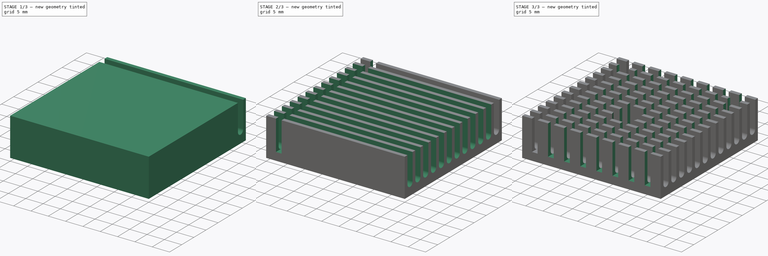
[diagram: build sequence overview — one tinted view per stage of 3, left to right]
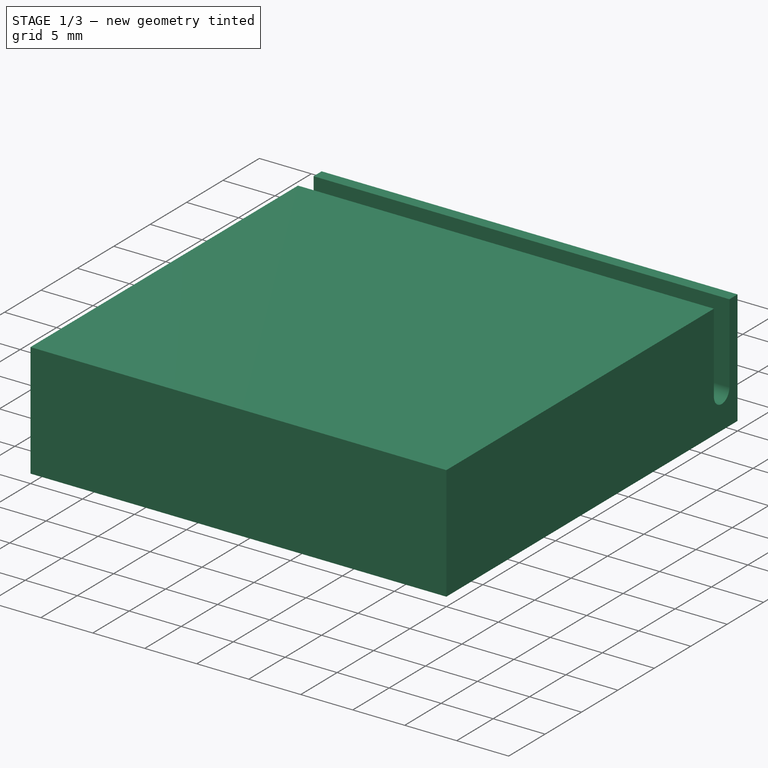
[diagram: stage 1 of 3 — iso view after this stage's code; geometry added in this stage tinted green]
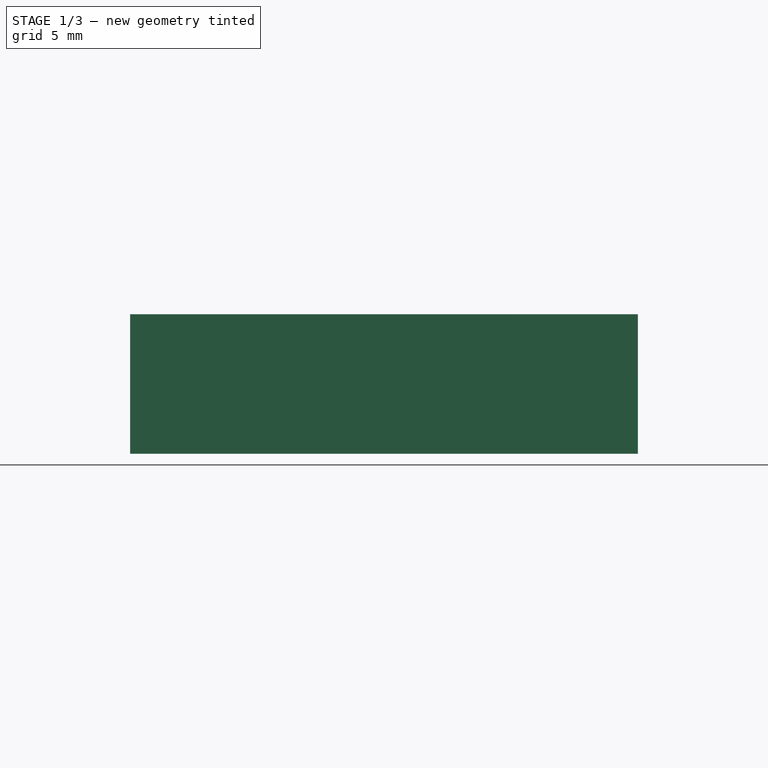
[diagram: stage 1 of 3 — front view after this stage's code; geometry added in this stage tinted green]
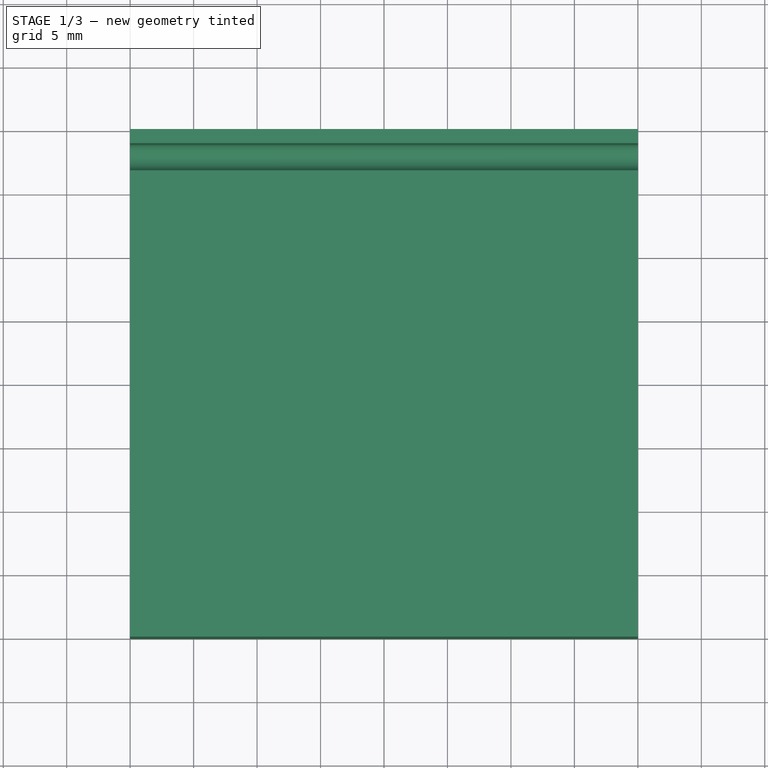
[diagram: stage 1 of 3 — top view after this stage's code; geometry added in this stage tinted green]
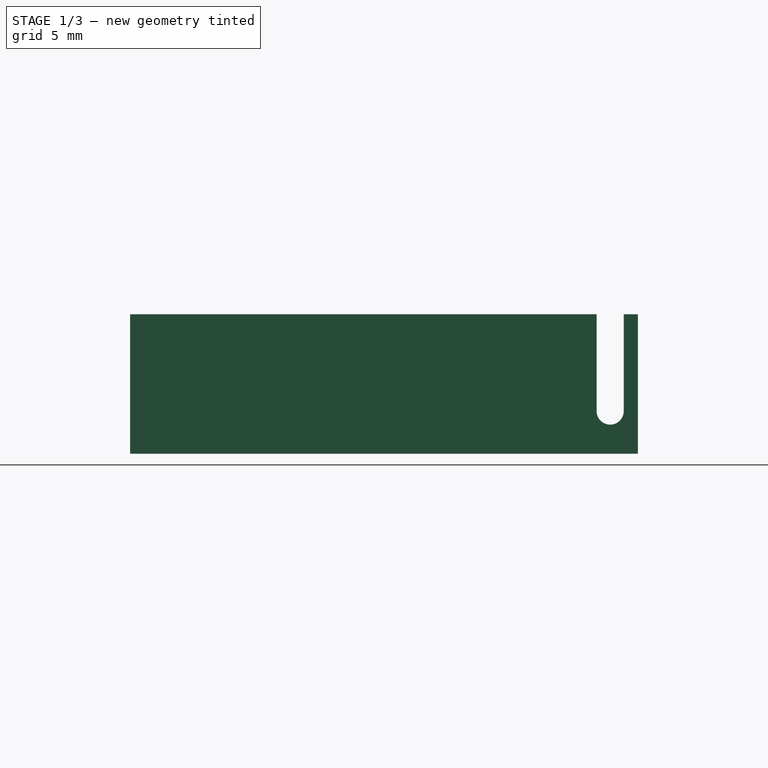
[diagram: stage 1 of 3 — right view after this stage's code; geometry added in this stage tinted green]
FCSTD DOCUMENT  (FreeCAD 0.14R3702 (Git))
Label: extruder-heat-sink
License: CC-BY 3.0
LicenseURL: http://creativecommons.org/licenses/by/3.0/
objects: Part::Part2DObjectPython×6, Sketcher::SketchObject×4, PartDesign::Pocket×3, PartDesign::LinearPattern×2, PartDesign::Pad×1, App::DocumentObjectGroup×1, Part::Feature×1
note: 21 computed .brp shape members not serialized (recipe doc carries the construction recipe); baked Part::Feature solids carry a one-line shape summary decoded from their .brp

FEATURE [Sketcher::SketchObject] Sketch  label="main-body-sketch"
  sketch-geometry (4):
    g0: LineSegment StartX=-20 StartY=20 StartZ=0 EndX=20 EndY=20 EndZ=0
    g1: LineSegment StartX=20 StartY=20 StartZ=0 EndX=20 EndY=-20 EndZ=0
    g2: LineSegment StartX=20 StartY=-20 StartZ=0 EndX=-20 EndY=-20 EndZ=0
    g3: LineSegment StartX=-20 StartY=-20 StartZ=0 EndX=-20 EndY=20 EndZ=0
  constraints (11):
    c: Coincident(g0,g1)
    c: Coincident(g1,g2)
    c: Coincident(g2,g3)
    c: Coincident(g3,g0)
    c: Horizontal(g0)
    c: Horizontal(g2)
    c: Vertical(g1)
    c: Vertical(g3)
    c: Symmetric(g0,g1,g-1)
    c: Equal(g0,g3)
    c: DistanceX(g0) = 40
FEATURE [PartDesign::Pad] Pad  label="main-body"
  Length = 11
  Length2 = 100
  Sketch = -> Sketch
  Type = 0
FEATURE [Sketcher::SketchObject] Sketch001  label="slot-x-master-sketch"
  ExternalGeometry = -> [Pad]
  Placement = pos=(-20,0,0) rot=(0.57735,-0.57735,-0.57735;2.0944rad)
  Support = -> Pad [Face4]
  sketch-geometry (7):
    g0: LineSegment StartX=-18.89 StartY=11 StartZ=0 EndX=-18.89 EndY=3.37 EndZ=0
    g1: LineSegment StartX=-16.75 StartY=11 StartZ=0 EndX=-16.75 EndY=3.37 EndZ=0
    g2: LineSegment [constr] StartX=-18.89 StartY=3.37 StartZ=0 EndX=-16.75 EndY=3.37 EndZ=0
    g3: ArcOfCircle CenterX=-17.82 CenterY=3.37 CenterZ=0 NormalX=0 NormalY=0 NormalZ=1 Radius=1.07 StartAngle=3.14159 EndAngle=6.28319
    g4: LineSegment StartX=-18.89 StartY=11 StartZ=0 EndX=-18.89 EndY=11.5 EndZ=0
    g5: LineSegment StartX=-18.89 StartY=11.5 StartZ=0 EndX=-16.75 EndY=11.5 EndZ=0
    g6: LineSegment StartX=-16.75 StartY=11.5 StartZ=0 EndX=-16.75 EndY=11 EndZ=0
  constraints (21):
    c: Vertical(g0)
    c: Vertical(g1)
    c: PointOnObject(g1,g-4)
    c: Equal(g0,g1)
    c: DistanceY(g0) = -7.63
    c: DistanceX(g0,g1) = 2.14
    c: DistanceX(g-4,g0) = 1.11
    c: Horizontal(g2)
    c: Coincident(g2,g0)
    c: Coincident(g2,g1)
    c: Coincident(g3,g1)
    c: Coincident(g3,g0)
    c: PointOnObject(g3,g2)
    c: Coincident(g4,g5)
    c: Coincident(g5,g6)
    c: Vertical(g4)
    c: Vertical(g6)
    c: Coincident(g4,g0)
    c: Coincident(g6,g1)
    c: Horizontal(g5)
    c: DistanceY(g1,g5) = 0.5
FEATURE [PartDesign::Pocket] Pocket  label="slot-x-master"
  Length = 5
  Sketch = -> Sketch001
  Type = 1
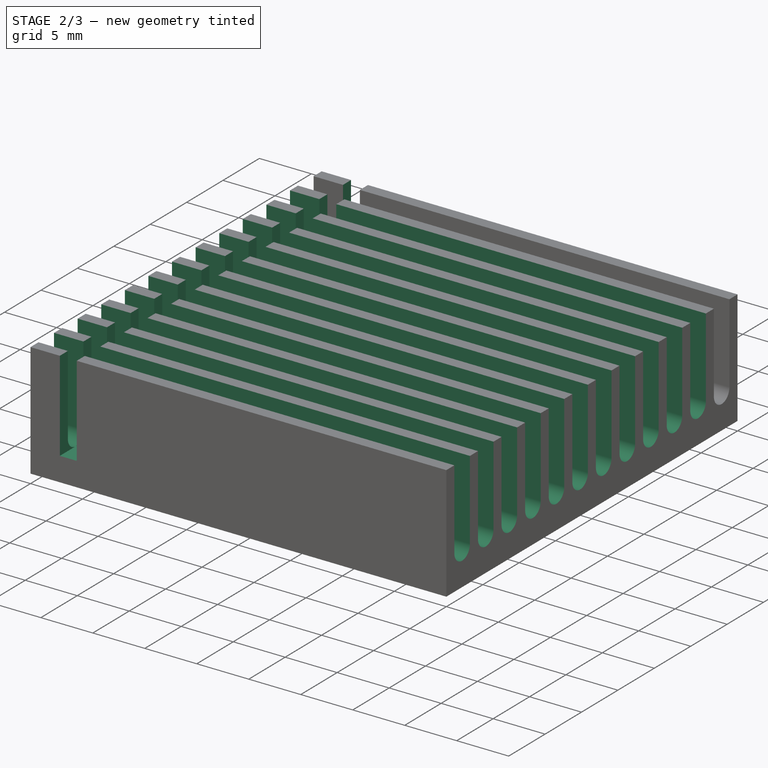
[diagram: stage 2 of 3 — iso view after this stage's code; geometry added in this stage tinted green]
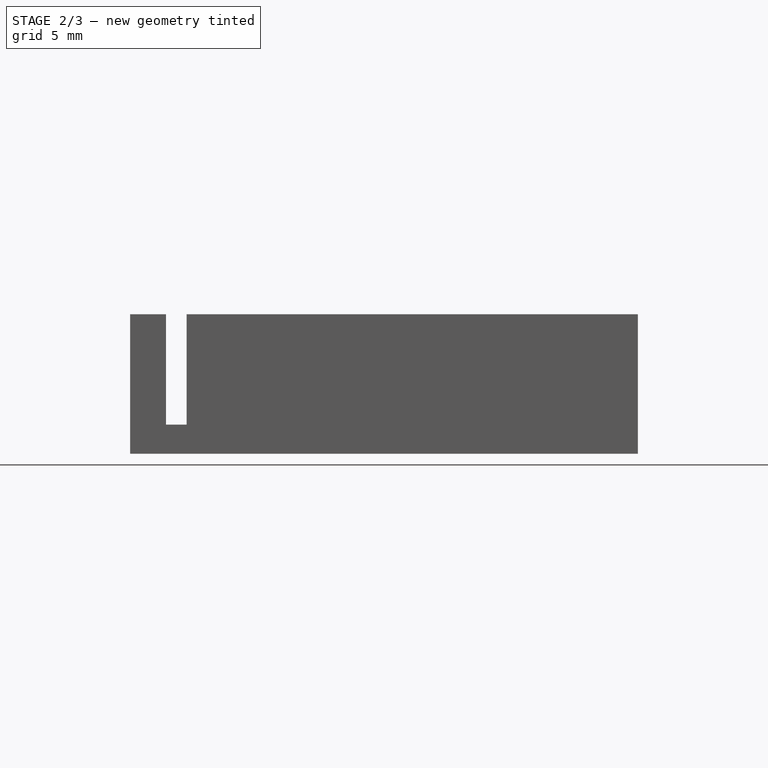
[diagram: stage 2 of 3 — front view after this stage's code; geometry added in this stage tinted green]
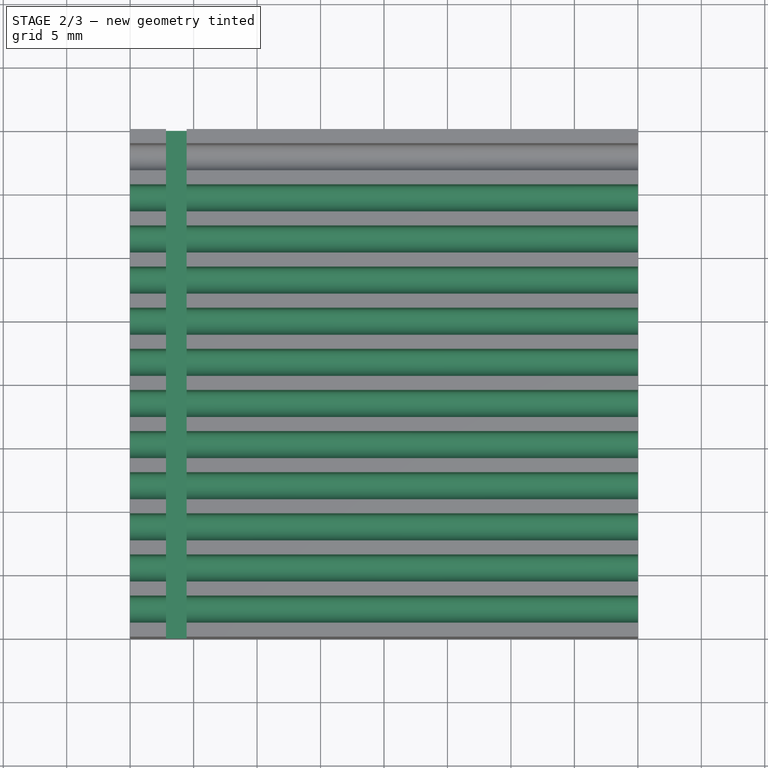
[diagram: stage 2 of 3 — top view after this stage's code; geometry added in this stage tinted green]
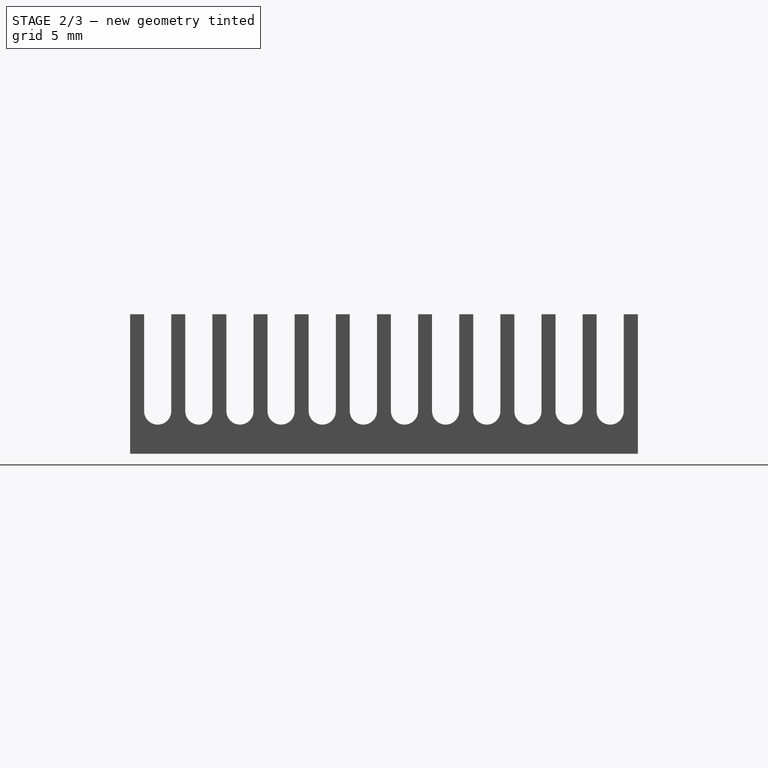
[diagram: stage 2 of 3 — right view after this stage's code; geometry added in this stage tinted green]
FEATURE [PartDesign::LinearPattern] LinearPattern  label="Slots-x"
  Direction = -> Sketch001 [H_Axis]
  Length = 35.65
  Occurrences = 12
  Originals = -> [Pocket]
FEATURE [Sketcher::SketchObject] Sketch002  label="slot-y-master-sketch"
  ExternalGeometry = -> [LinearPattern]
  Placement = pos=(0,-20,0) rot=(1,0,0;1.5708rad)
  Support = -> LinearPattern [Face54]
  sketch-geometry (6):
    g0: LineSegment StartX=-15.55 StartY=11 StartZ=0 EndX=-15.55 EndY=2.3 EndZ=0
    g1: LineSegment StartX=-15.55 StartY=2.3 StartZ=0 EndX=-17.175 EndY=2.3 EndZ=0
    g2: LineSegment StartX=-17.175 StartY=2.3 StartZ=0 EndX=-17.175 EndY=11 EndZ=0
    g3: LineSegment StartX=-17.175 StartY=11 StartZ=0 EndX=-17.175 EndY=11.5 EndZ=0
    g4: LineSegment StartX=-17.175 StartY=11.5 StartZ=0 EndX=-15.55 EndY=11.5 EndZ=0
    g5: LineSegment StartX=-15.55 StartY=11.5 StartZ=0 EndX=-15.55 EndY=11 EndZ=0
  constraints (18):
    c: Coincident(g0,g1)
    c: Coincident(g1,g2)
    c: Horizontal(g1)
    c: Vertical(g0)
    c: Vertical(g2)
    c: PointOnObject(g2,g-3)
    c: PointOnObject(g0,g-3)
    c: DistanceY(g2) = 8.7
    c: DistanceX(g1) = -1.625
    c: DistanceX(g-3,g2) = 2.825
    c: Coincident(g3,g4)
    c: Coincident(g4,g5)
    c: Vertical(g3)
    c: Vertical(g5)
    c: Horizontal(g4)
    c: Coincident(g3,g2)
    c: Coincident(g5,g0)
    c: DistanceY(g5) = -0.5
FEATURE [PartDesign::Pocket] Pocket001  label="slot-y-master"
  Length = 5
  Sketch = -> Sketch002
  Type = 1
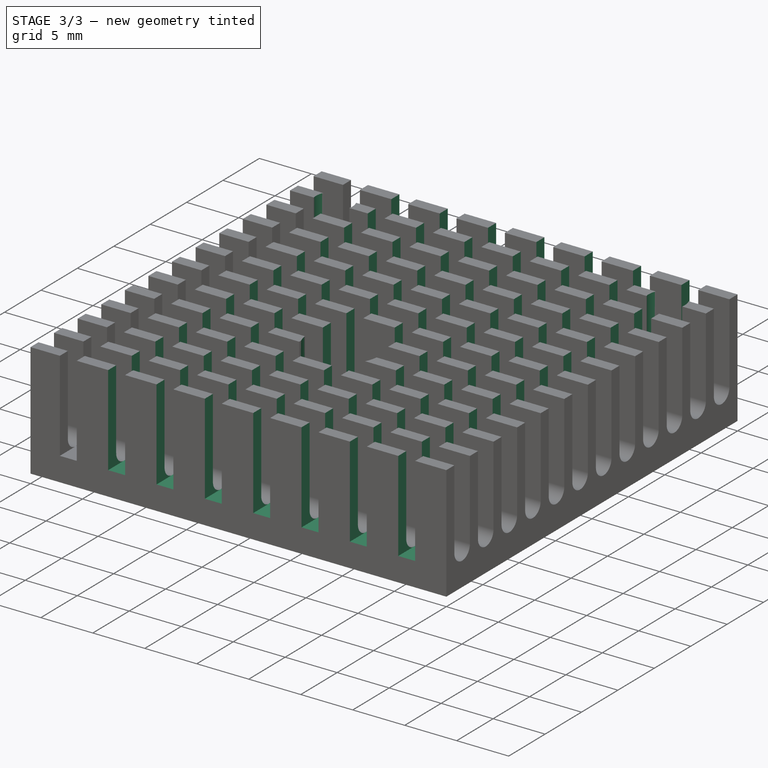
[diagram: stage 3 of 3 — iso view after this stage's code; geometry added in this stage tinted green]
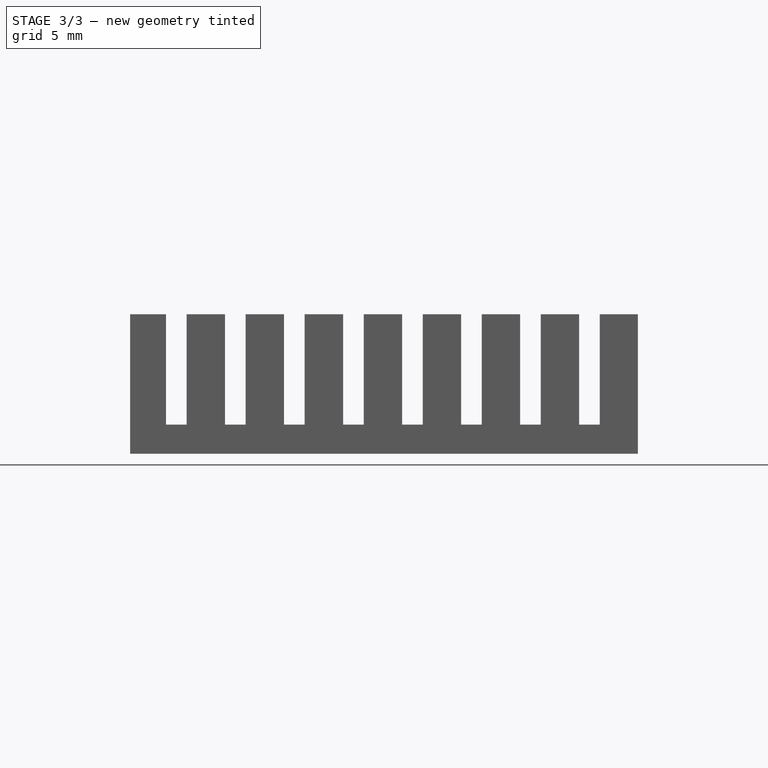
[diagram: stage 3 of 3 — front view after this stage's code; geometry added in this stage tinted green]
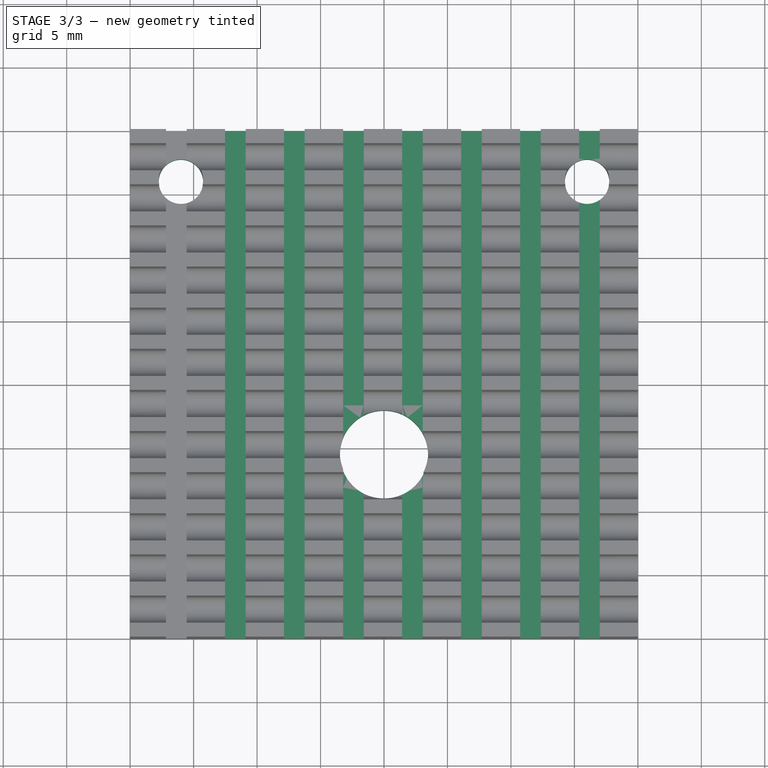
[diagram: stage 3 of 3 — top view after this stage's code; geometry added in this stage tinted green]
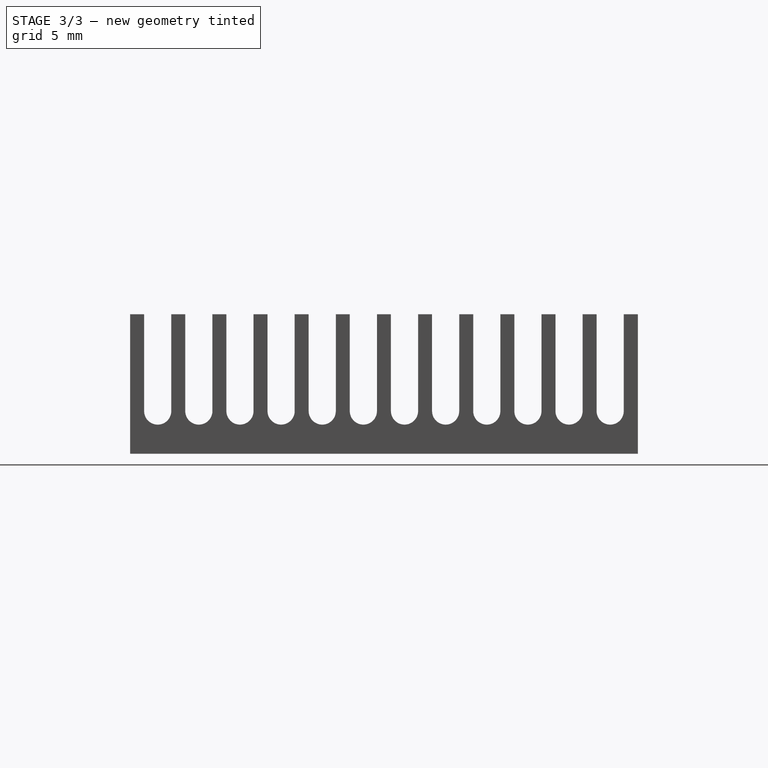
[diagram: stage 3 of 3 — right view after this stage's code; geometry added in this stage tinted green]
FEATURE [PartDesign::LinearPattern] LinearPattern001
  Direction = -> Sketch002 [H_Axis]
  Length = 32.55
  Occurrences = 8
  Originals = -> [Pocket001]
FEATURE [Sketcher::SketchObject] Sketch003  label="drills-sketch"
  Placement = pos=(0,0,0) rot=(1,0,0;3.14159rad)
  Support = -> LinearPattern001 [Face46]
  sketch-geometry (4):
    g0: Circle CenterX=-16 CenterY=-16 CenterZ=0 NormalX=0 NormalY=0 NormalZ=1 Radius=1.75
    g1: Circle CenterX=16 CenterY=-16 CenterZ=0 NormalX=0 NormalY=0 NormalZ=1 Radius=1.75
    g2: Circle CenterX=0 CenterY=5.5 CenterZ=0 NormalX=0 NormalY=0 NormalZ=1 Radius=3.47
    g3: LineSegment [constr] StartX=-16 StartY=-16 StartZ=0 EndX=16 EndY=-16 EndZ=0
  constraints (11):
    c: Equal(g0,g1)
    c: PointOnObject(g2,g-2)
    c: Horizontal(g3)
    c: Coincident(g3,g0)
    c: Coincident(g3,g1)
    c: Symmetric(g0,g1,g-2)
    c: DistanceY(g-1,g2) = 5.5
    c: DistanceX(g-1,g0) = -16
    c: DistanceY(g-1,g0) = -16
    c: Radius(g2) = 3.47
    c: Radius(g1) = 1.75
FEATURE [Part::Part2DObjectPython] Line  # Draft 2D object (typed FeaturePython)
  ChamferSize = 0
  Closed = false
  End = (3.47274,-5.936,0)
  FilletRadius = 0
  MakeFace = false
  Points = (2) [(-5.10703e-16,-5.5,2.3),(3.47274,-5.936,0)]
  Start = (0,-5.5,2.3)
FEATURE [Part::Part2DObjectPython] Line001  # Draft 2D object (typed FeaturePython)
  ChamferSize = 0
  Closed = false
  End = (0,0,0)
  FilletRadius = 0
  MakeFace = false
  Points = (2) [(-5.10703e-16,-5.5,2.3),(0,0,0)]
  Start = (0,-5.5,2.3)
FEATURE [Part::Part2DObjectPython] Line003  # Draft 2D object (typed FeaturePython)
  ChamferSize = 0
  Closed = false
  End = (16,16,0)
  FilletRadius = 0
  MakeFace = false
  Points = (2) [(-16,16,5.32907e-15),(16,16,1.24345e-14)]
  Start = (-16,16,0)
FEATURE [Part::Part2DObjectPython] Line004  # Draft 2D object (typed FeaturePython)
  ChamferSize = 0
  Closed = false
  End = (0,0,0)
  FilletRadius = 0
  MakeFace = false
  Points = (2) [(-16,16,5.32907e-15),(0,0,0)]
  Start = (-16,16,0)
FEATURE [Part::Part2DObjectPython] Line005  # Draft 2D object (typed FeaturePython)
  ChamferSize = 0
  Closed = false
  End = (16,16,0)
  FilletRadius = 0
  MakeFace = false
  Points = (2) [(0,0,0),(16,16,1.24345e-14)]
  Start = (0,0,0)
FEATURE [Part::Part2DObjectPython] Line006  # Draft 2D object (typed FeaturePython)
  ChamferSize = 0
  Closed = false
  End = (17.75,15.9876,0)
  FilletRadius = 0
  MakeFace = false
  Points = (2) [(16,16,1.24345e-14),(17.75,15.9876,3.41061e-13)]
  Start = (16,16,0)
FEATURE [App::DocumentObjectGroup] Construction
  Group = -> [Line,Line001,Line003,Line004,Line005,Line006]
FEATURE [PartDesign::Pocket] Pocket002  label="drills"
  Length = 5
  Sketch = -> Sketch003
  Type = 1
FEATURE [Part::Feature] Pocket002001  label="extruder-heat-sink-final"
  shape: bbox 40 x 40 x 11 mm, 661 faces (baked)
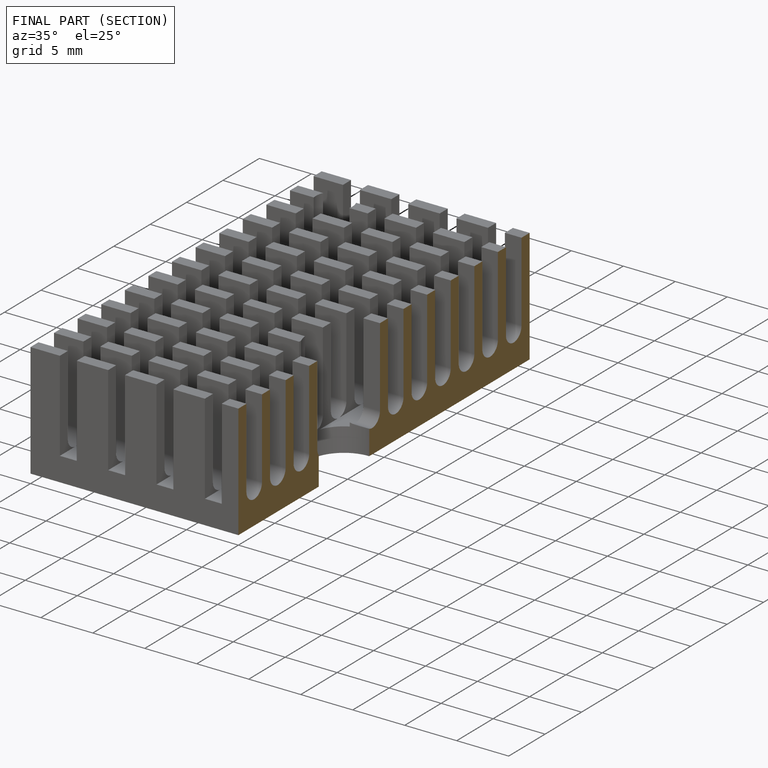
[diagram: finished part — half-section view (interior)]
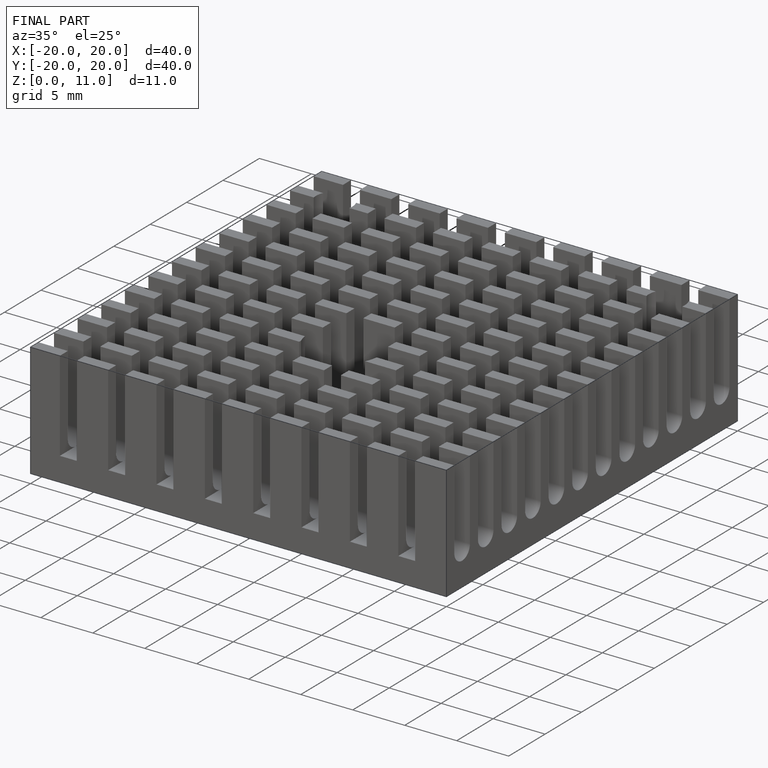
[diagram: finished part — iso view with bounding-box wireframe]
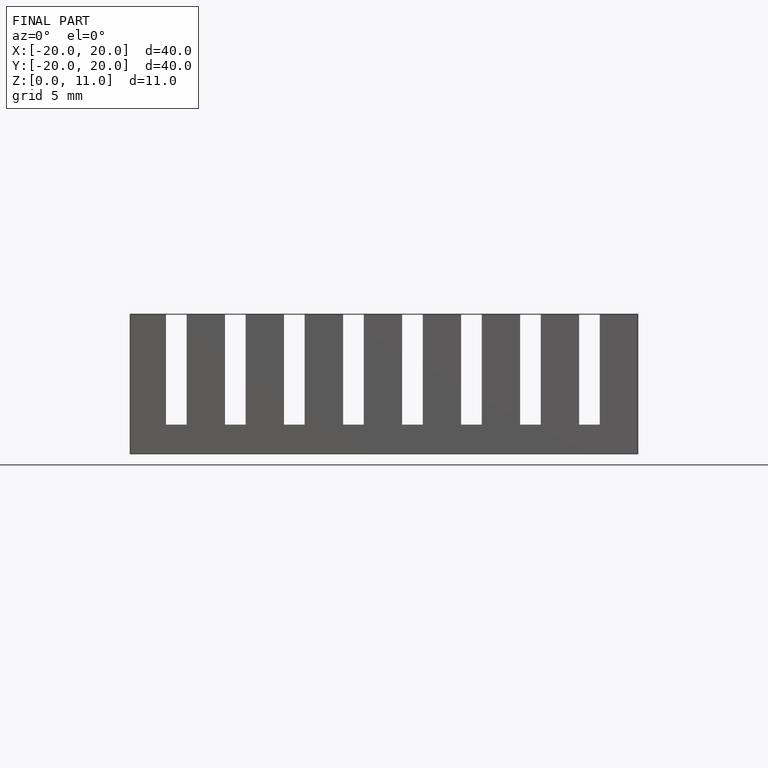
[diagram: finished part — front view with bounding-box wireframe]
